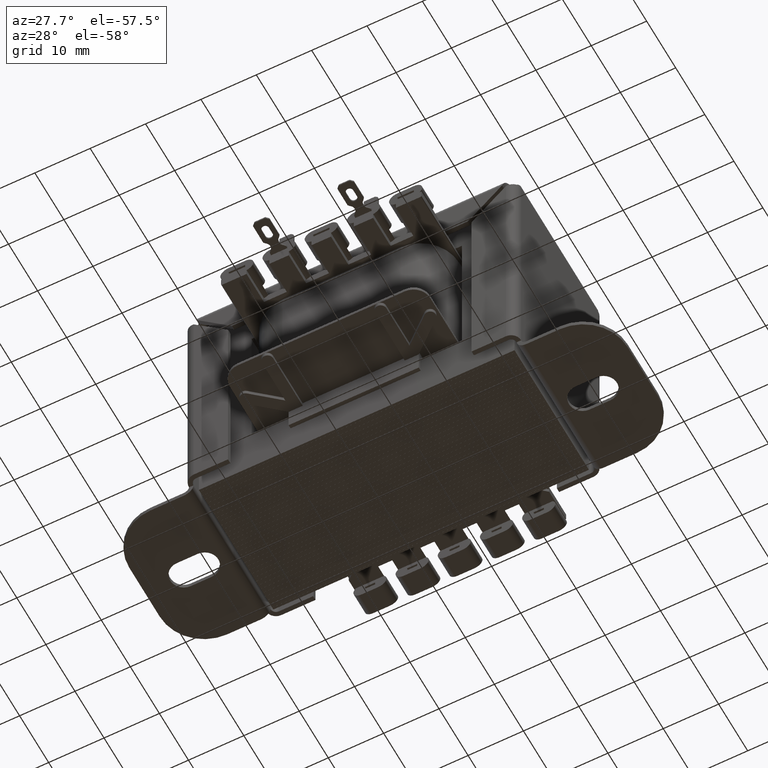
[diagram: clean part render]
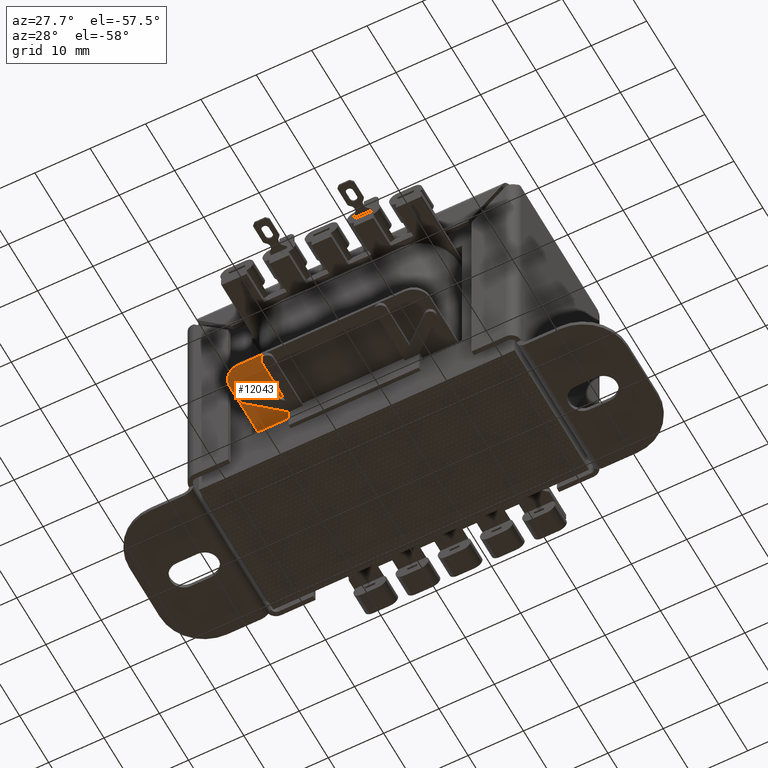
[diagram: same view with one face highlighted and labeled with its STEP entity id]
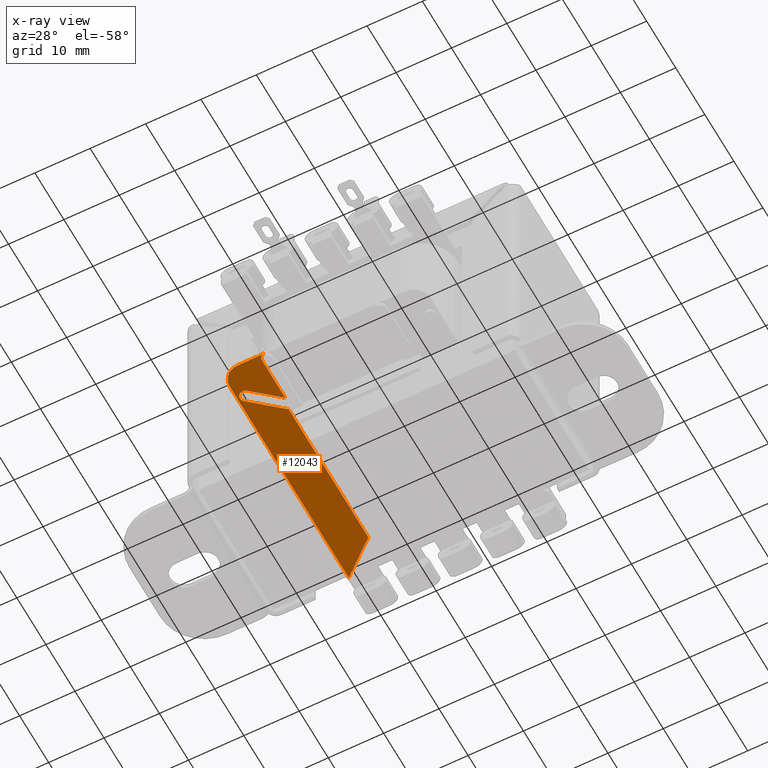
[diagram: x-ray of the same camera — body ghosted, the highlighted face saturated]
A machine part, auxiliary view. The second image highlights one B-rep face of the part: STEP entity #12043.
The next image is the same camera in x-ray: the body ghosted, the highlighted face saturated — about 0% of this face is hidden behind the body in this view.
In plain terms, the highlighted planar face has unit normal (0, 0, -1).
Its self-contained STEP definition (entity closure, byte-faithful):
#205 = VERTEX_POINT ( 'NONE', #13160 ) ;
#400 = VERTEX_POINT ( 'NONE', #13881 ) ;
#836 = DIRECTION ( 'NONE',  ( -1.000000000000000000, 0.000000000000000000, 0.000000000000000000 ) ) ;
#996 = CARTESIAN_POINT ( 'NONE',  ( -18.09750000000001080, 19.04428265797578845, 0.000000000000000000 ) ) ;
#1133 = VECTOR ( 'NONE', #7311, 1000.000000000000000 ) ;
#1170 = CARTESIAN_POINT ( 'NONE',  ( -10.21550000000000580, -24.89199999999999946, 0.000000000000000000 ) ) ;
#1424 = VECTOR ( 'NONE', #7723, 1000.000000000000000 ) ;
#1984 = LINE ( 'NONE', #5000, #12827 ) ;
#2255 = LINE ( 'NONE', #16258, #10270 ) ;
#2642 = AXIS2_PLACEMENT_3D ( 'NONE', #5237, #15215, #15296 ) ;
#2837 = CARTESIAN_POINT ( 'NONE',  ( -11.74750000000002004, 2.005774019098190776E-14, -0.000000000000000000 ) ) ;
#2946 = EDGE_CURVE ( 'NONE', #400, #9226, #11015, .T. ) ;
#3035 = ORIENTED_EDGE ( 'NONE', *, *, #4534, .F. ) ;
#3038 = CARTESIAN_POINT ( 'NONE',  ( -18.09750000000001080, 19.04428265797578845, 0.000000000000000000 ) ) ;
#3194 = AXIS2_PLACEMENT_3D ( 'NONE', #9753, #5624, #6811 ) ;
#3736 = EDGE_CURVE ( 'NONE', #12394, #205, #10242, .T. ) ;
#3962 = CARTESIAN_POINT ( 'NONE',  ( -16.04588033750794906, -19.93358393452714239, 0.000000000000000000 ) ) ;
#4236 = CARTESIAN_POINT ( 'NONE',  ( -18.09750000000001080, 24.89199999999999235, 0.000000000000000000 ) ) ;
#4317 = ORIENTED_EDGE ( 'NONE', *, *, #3736, .T. ) ;
#4534 = EDGE_CURVE ( 'NONE', #11984, #5052, #2255, .T. ) ;
#4584 = VECTOR ( 'NONE', #17961, 1000.000000000000000 ) ;
#4851 = VECTOR ( 'NONE', #16384, 1000.000000000000114 ) ;
#4863 = ORIENTED_EDGE ( 'NONE', *, *, #10827, .T. ) ;
#5000 = CARTESIAN_POINT ( 'NONE',  ( -16.81192478062693141, -20.57637154421367853, 0.000000000000000000 ) ) ;
#5028 = LINE ( 'NONE', #5117, #4851 ) ;
#5052 = VERTEX_POINT ( 'NONE', #6905 ) ;
#5098 = ORIENTED_EDGE ( 'NONE', *, *, #11295, .F. ) ;
#5117 = CARTESIAN_POINT ( 'NONE',  ( -11.74749999999999517, -13.71600000000000996, 0.000000000000000000 ) ) ;
#5189 = VECTOR ( 'NONE', #17920, 1000.000000000000000 ) ;
#5237 = CARTESIAN_POINT ( 'NONE',  ( -15.09750000000000014, -21.89200000000000301, 0.000000000000000000 ) ) ;
#5274 = ORIENTED_EDGE ( 'NONE', *, *, #2946, .T. ) ;
#5583 = CARTESIAN_POINT ( 'NONE',  ( -11.74749999999999517, 13.71599999999999220, 0.000000000000000000 ) ) ;
#5624 = DIRECTION ( 'NONE',  ( 0.000000000000000000, 0.000000000000000000, -1.000000000000000000 ) ) ;
#5936 = EDGE_CURVE ( 'NONE', #400, #11555, #5028, .T. ) ;
#6113 = CIRCLE ( 'NONE', #17216, 0.9999999999999991118 ) ;
#6224 = CARTESIAN_POINT ( 'NONE',  ( -10.21550000000000402, -23.89199999999999591, 0.000000000000000000 ) ) ;
#6720 = VERTEX_POINT ( 'NONE', #3962 ) ;
#6727 = CARTESIAN_POINT ( 'NONE',  ( -11.21550000000000402, -23.89199999999999235, 0.000000000000000000 ) ) ;
#6751 = EDGE_CURVE ( 'NONE', #8611, #205, #16584, .T. ) ;
#6811 = DIRECTION ( 'NONE',  ( -1.000000000000000000, 0.000000000000000000, -0.000000000000000000 ) ) ;
#6849 = LINE ( 'NONE', #996, #5189 ) ;
#6905 = CARTESIAN_POINT ( 'NONE',  ( -11.21549999999999159, -15.88041357487824889, 0.000000000000000000 ) ) ;
#7311 = DIRECTION ( 'NONE',  ( -1.707404996040168111E-15, -1.000000000000000000, 0.000000000000000000 ) ) ;
#7536 = EDGE_CURVE ( 'NONE', #11119, #8611, #6849, .T. ) ;
#7723 = DIRECTION ( 'NONE',  ( 1.000000000000000000, 1.917086311343342687E-16, -0.000000000000000000 ) ) ;
#7808 = ORIENTED_EDGE ( 'NONE', *, *, #14080, .T. ) ;
#7912 = CARTESIAN_POINT ( 'NONE',  ( 18.09749999999999659, -24.89199999999999235, 0.000000000000000000 ) ) ;
#7939 = ORIENTED_EDGE ( 'NONE', *, *, #5936, .F. ) ;
#8136 = CARTESIAN_POINT ( 'NONE',  ( -16.68866794719448876, -19.16753949140816005, 0.000000000000000000 ) ) ;
#8611 = VERTEX_POINT ( 'NONE', #3038 ) ;
#9226 = VERTEX_POINT ( 'NONE', #14795 ) ;
#9557 = AXIS2_PLACEMENT_3D ( 'NONE', #8136, #13728, #17922 ) ;
#9753 = CARTESIAN_POINT ( 'NONE',  ( 0.000000000000000000, 0.000000000000000000, 0.000000000000000000 ) ) ;
#10242 = CIRCLE ( 'NONE', #2642, 2.999999999999999112 ) ;
#10270 = VECTOR ( 'NONE', #13610, 1000.000000000000000 ) ;
#10546 = DIRECTION ( 'NONE',  ( -1.000000000000000000, 0.000000000000000000, 0.000000000000000000 ) ) ;
#10827 = EDGE_CURVE ( 'NONE', #9226, #6720, #17181, .T. ) ;
#11015 = CIRCLE ( 'NONE', #9557, 1.000000000000000888 ) ;
#11119 = VERTEX_POINT ( 'NONE', #5583 ) ;
#11157 = EDGE_CURVE ( 'NONE', #11119, #11555, #15627, .T. ) ;
#11295 = EDGE_CURVE ( 'NONE', #5052, #6720, #1984, .T. ) ;
#11359 = AXIS2_PLACEMENT_3D ( 'NONE', #16185, #16101, #10546 ) ;
#11531 = CARTESIAN_POINT ( 'NONE',  ( -15.09750000000000014, -24.89199999999999946, 0.000000000000000000 ) ) ;
#11555 = VERTEX_POINT ( 'NONE', #12878 ) ;
#11758 = LINE ( 'NONE', #7912, #1424 ) ;
#11984 = VERTEX_POINT ( 'NONE', #6727 ) ;
#12043 = ADVANCED_FACE ( 'NONE', ( #12591 ), #15413, .T. ) ;
#12394 = VERTEX_POINT ( 'NONE', #11531 ) ;
#12591 = FACE_OUTER_BOUND ( 'NONE', #16568, .T. ) ;
#12827 = VECTOR ( 'NONE', #12979, 1000.000000000000114 ) ;
#12878 = CARTESIAN_POINT ( 'NONE',  ( -11.74749999999999517, -13.71600000000000996, 0.000000000000000000 ) ) ;
#12925 = EDGE_CURVE ( 'NONE', #12394, #15170, #11758, .T. ) ;
#12979 = DIRECTION ( 'NONE',  ( -0.7660444431189797898, -0.6427876096865372535, -0.000000000000000000 ) ) ;
#13160 = CARTESIAN_POINT ( 'NONE',  ( -18.09750000000000369, -21.89199999999999946, 0.000000000000000000 ) ) ;
#13610 = DIRECTION ( 'NONE',  ( 1.539993864912299471E-15, 1.000000000000000000, -0.000000000000000000 ) ) ;
#13728 = DIRECTION ( 'NONE',  ( -0.000000000000000000, 0.000000000000000000, 1.000000000000000000 ) ) ;
#13881 = CARTESIAN_POINT ( 'NONE',  ( -17.33145555688102846, -18.40149504828918126, 0.000000000000000000 ) ) ;
#13925 = ORIENTED_EDGE ( 'NONE', *, *, #7536, .F. ) ;
#14080 = EDGE_CURVE ( 'NONE', #11984, #15170, #6113, .T. ) ;
#14163 = ORIENTED_EDGE ( 'NONE', *, *, #12925, .F. ) ;
#14795 = CARTESIAN_POINT ( 'NONE',  ( -17.45471239031346755, -19.81032710109469619, 0.000000000000000000 ) ) ;
#15170 = VERTEX_POINT ( 'NONE', #1170 ) ;
#15215 = DIRECTION ( 'NONE',  ( 0.000000000000000000, -0.000000000000000000, -1.000000000000000000 ) ) ;
#15296 = DIRECTION ( 'NONE',  ( -1.000000000000000000, 0.000000000000000000, 0.000000000000000000 ) ) ;
#15413 = PLANE ( 'NONE',  #3194 ) ;
#15627 = LINE ( 'NONE', #2837, #1133 ) ;
#16101 = DIRECTION ( 'NONE',  ( -0.000000000000000000, 0.000000000000000000, 1.000000000000000000 ) ) ;
#16185 = CARTESIAN_POINT ( 'NONE',  ( -16.68866794719448521, -19.16753949140816005, 0.000000000000000000 ) ) ;
#16258 = CARTESIAN_POINT ( 'NONE',  ( -11.21549999999999159, -15.88041357487824889, 0.000000000000000000 ) ) ;
#16384 = DIRECTION ( 'NONE',  ( 0.7660444431189796788, 0.6427876096865373645, -0.000000000000000000 ) ) ;
#16568 = EDGE_LOOP ( 'NONE', ( #14163, #4317, #17539, #13925, #17950, #7939, #5274, #4863, #5098, #3035, #7808 ) ) ;
#16584 = LINE ( 'NONE', #4236, #4584 ) ;
#17181 = CIRCLE ( 'NONE', #11359, 1.000000000000000888 ) ;
#17216 = AXIS2_PLACEMENT_3D ( 'NONE', #6224, #17661, #836 ) ;
#17539 = ORIENTED_EDGE ( 'NONE', *, *, #6751, .F. ) ;
#17661 = DIRECTION ( 'NONE',  ( -0.000000000000000000, 0.000000000000000000, 1.000000000000000000 ) ) ;
#17920 = DIRECTION ( 'NONE',  ( -0.7660444431189747938, 0.6427876096865433597, -0.000000000000000000 ) ) ;
#17922 = DIRECTION ( 'NONE',  ( -1.000000000000000000, 0.000000000000000000, 0.000000000000000000 ) ) ;
#17950 = ORIENTED_EDGE ( 'NONE', *, *, #11157, .T. ) ;
#17961 = DIRECTION ( 'NONE',  ( 1.393799996767481304E-16, -1.000000000000000000, 0.000000000000000000 ) ) ;